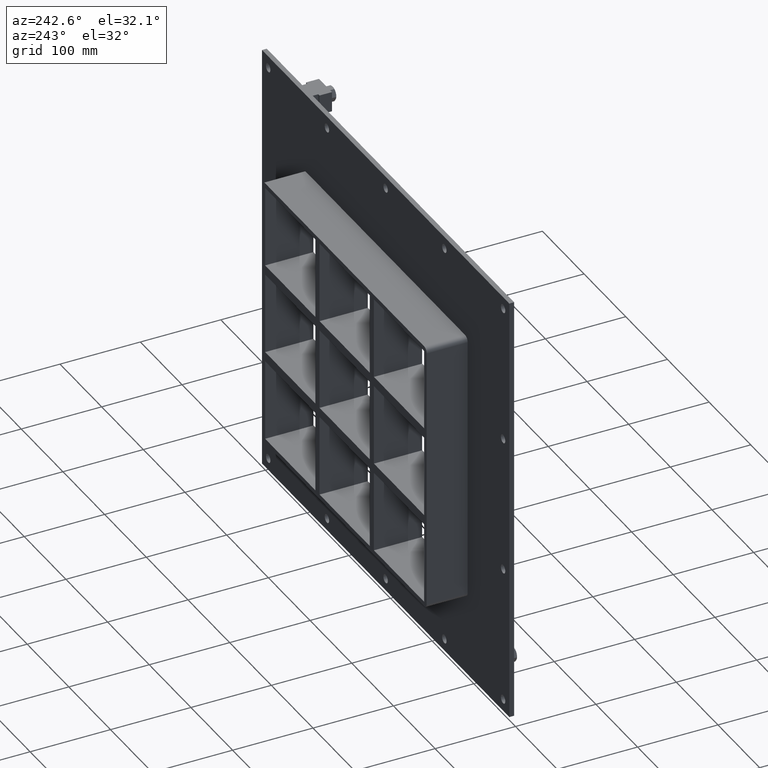
[diagram: clean part render]
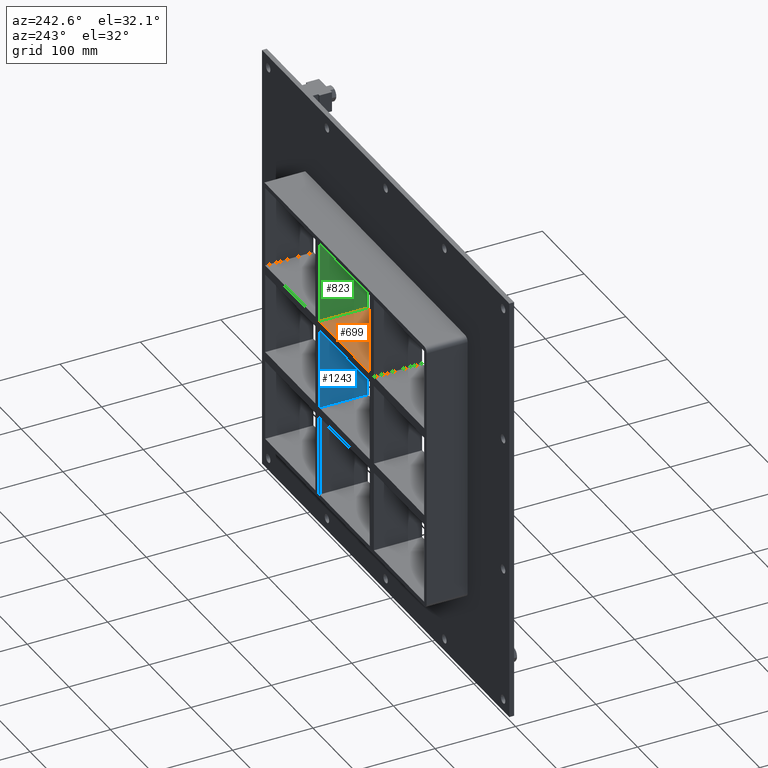
[diagram: same view with three faces highlighted in distinct colors, each labeled with its STEP entity id]
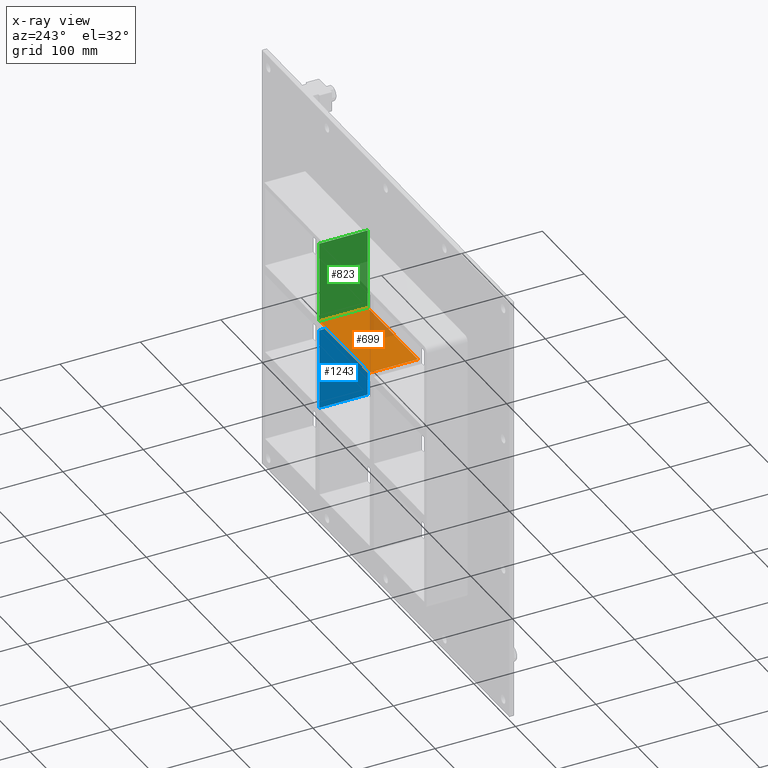
[diagram: x-ray of the same camera — body ghosted, the three highlighted faces saturated]
A machine part, auxiliary view with three faces highlighted in distinct colors.
The next image is the same camera in x-ray (body ghosted, the three faces saturated) — at least one of them is partly hidden behind the body in this view.
Their STEP definitions:

[orange] entity #699 — the highlighted planar face has unit normal (0, 0, 1).
#660=CARTESIAN_POINT('',(-190.74999999999747,-3.0,62.500000000000462));
#661=DIRECTION('',(0.0,0.0,1.0));
#662=DIRECTION('',(1.0,0.0,0.0));
#663=AXIS2_PLACEMENT_3D('',#660,#661,#662);
#664=PLANE('',#663);
#665=CARTESIAN_POINT('',(60.250000000000874,57.0,62.500000000000462));
#666=VERTEX_POINT('',#665);
#667=CARTESIAN_POINT('',(60.250000000000874,-3.0,62.500000000000462));
#668=VERTEX_POINT('',#667);
#669=CARTESIAN_POINT('',(60.250000000000895,57.0,62.500000000000462));
#670=DIRECTION('',(0.0,-1.0,0.0));
#671=VECTOR('',#670,60.0);
#672=LINE('',#669,#671);
#673=EDGE_CURVE('',#666,#668,#672,.T.);
#674=ORIENTED_EDGE('',*,*,#673,.F.);
#675=CARTESIAN_POINT('',(-60.249999999996362,57.0,62.500000000000462));
#676=VERTEX_POINT('',#675);
#677=CARTESIAN_POINT('',(-60.249999999996362,57.0,62.500000000000462));
#678=DIRECTION('',(1.0,0.0,0.0));
#679=VECTOR('',#678,120.49999999999724);
#680=LINE('',#677,#679);
#681=EDGE_CURVE('',#676,#666,#680,.T.);
#682=ORIENTED_EDGE('',*,*,#681,.F.);
#683=CARTESIAN_POINT('',(-60.249999999996362,-3.0,62.500000000000462));
#684=VERTEX_POINT('',#683);
#685=CARTESIAN_POINT('',(-60.249999999996362,-3.0,62.500000000000462));
#686=DIRECTION('',(0.0,1.0,0.0));
#687=VECTOR('',#686,60.0);
#688=LINE('',#685,#687);
#689=EDGE_CURVE('',#684,#676,#688,.T.);
#690=ORIENTED_EDGE('',*,*,#689,.F.);
#691=CARTESIAN_POINT('',(-60.249999999996362,-3.0,62.500000000000462));
#692=DIRECTION('',(1.0,0.0,0.0));
#693=VECTOR('',#692,120.49999999999724);
#694=LINE('',#691,#693);
#695=EDGE_CURVE('',#684,#668,#694,.T.);
#696=ORIENTED_EDGE('',*,*,#695,.T.);
#697=EDGE_LOOP('',(#674,#682,#690,#696));
#698=FACE_OUTER_BOUND('',#697,.T.);
#699=ADVANCED_FACE('',(#698),#664,.T.);

[blue] entity #1243 — the highlighted planar face has unit normal (-1, 0, 0).
#545=CARTESIAN_POINT('',(60.250000000000895,-3.0,50.499999999988965));
#546=VERTEX_POINT('',#545);
#547=CARTESIAN_POINT('',(60.250000000000895,57.0,50.499999999988965));
#548=VERTEX_POINT('',#547);
#549=CARTESIAN_POINT('',(60.250000000000881,-3.0,50.499999999988958));
#550=DIRECTION('',(0.0,1.0,0.0));
#551=VECTOR('',#550,60.0);
#552=LINE('',#549,#551);
#553=EDGE_CURVE('',#546,#548,#552,.T.);
#1090=CARTESIAN_POINT('',(60.250000000000902,57.0,-50.499999999999545));
#1091=VERTEX_POINT('',#1090);
#1098=CARTESIAN_POINT('',(60.250000000000895,57.0,-50.499999999999545));
#1099=DIRECTION('',(0.0,0.0,1.0));
#1100=VECTOR('',#1099,100.99999999998849);
#1101=LINE('',#1098,#1100);
#1102=EDGE_CURVE('',#1091,#548,#1101,.T.);
#1220=CARTESIAN_POINT('',(60.250000000000909,-3.0,-163.50000000000006));
#1221=DIRECTION('',(-1.0,0.0,0.0));
#1222=DIRECTION('',(0.0,0.0,1.0));
#1223=AXIS2_PLACEMENT_3D('',#1220,#1221,#1222);
#1224=PLANE('',#1223);
#1225=ORIENTED_EDGE('',*,*,#553,.T.);
#1226=ORIENTED_EDGE('',*,*,#1102,.F.);
#1227=CARTESIAN_POINT('',(60.250000000000902,-3.0,-50.499999999999545));
#1228=VERTEX_POINT('',#1227);
#1229=CARTESIAN_POINT('',(60.250000000000902,-3.0,-50.499999999999545));
#1230=DIRECTION('',(0.0,1.0,0.0));
#1231=VECTOR('',#1230,60.0);
#1232=LINE('',#1229,#1231);
#1233=EDGE_CURVE('',#1228,#1091,#1232,.T.);
#1234=ORIENTED_EDGE('',*,*,#1233,.F.);
#1235=CARTESIAN_POINT('',(60.250000000000895,-3.0,-50.499999999999545));
#1236=DIRECTION('',(0.0,0.0,1.0));
#1237=VECTOR('',#1236,100.99999999998849);
#1238=LINE('',#1235,#1237);
#1239=EDGE_CURVE('',#1228,#546,#1238,.T.);
#1240=ORIENTED_EDGE('',*,*,#1239,.T.);
#1241=EDGE_LOOP('',(#1225,#1226,#1234,#1240));
#1242=FACE_OUTER_BOUND('',#1241,.T.);
#1243=ADVANCED_FACE('',(#1242),#1224,.T.);

[green] entity #823 — the highlighted planar face has unit normal (-1, 0, 0).
#665=CARTESIAN_POINT('',(60.250000000000874,57.0,62.500000000000462));
#666=VERTEX_POINT('',#665);
#667=CARTESIAN_POINT('',(60.250000000000874,-3.0,62.500000000000462));
#668=VERTEX_POINT('',#667);
#669=CARTESIAN_POINT('',(60.250000000000895,57.0,62.500000000000462));
#670=DIRECTION('',(0.0,-1.0,0.0));
#671=VECTOR('',#670,60.0);
#672=LINE('',#669,#671);
#673=EDGE_CURVE('',#666,#668,#672,.T.);
#793=CARTESIAN_POINT('',(60.250000000000909,-3.0,-163.50000000000006));
#794=DIRECTION('',(-1.0,0.0,0.0));
#795=DIRECTION('',(0.0,0.0,1.0));
#796=AXIS2_PLACEMENT_3D('',#793,#794,#795);
#797=PLANE('',#796);
#798=ORIENTED_EDGE('',*,*,#673,.T.);
#799=CARTESIAN_POINT('',(60.250000000000874,-3.0,163.49999999999997));
#800=VERTEX_POINT('',#799);
#801=CARTESIAN_POINT('',(60.250000000000888,-3.0,62.500000000000455));
#802=DIRECTION('',(0.0,0.0,1.0));
#803=VECTOR('',#802,100.99999999999949);
#804=LINE('',#801,#803);
#805=EDGE_CURVE('',#668,#800,#804,.T.);
#806=ORIENTED_EDGE('',*,*,#805,.T.);
#807=CARTESIAN_POINT('',(60.250000000000874,57.0,163.49999999999997));
#808=VERTEX_POINT('',#807);
#809=CARTESIAN_POINT('',(60.250000000000874,57.000000000000007,163.5));
#810=DIRECTION('',(0.0,-1.0,0.0));
#811=VECTOR('',#810,60.000000000000007);
#812=LINE('',#809,#811);
#813=EDGE_CURVE('',#808,#800,#812,.T.);
#814=ORIENTED_EDGE('',*,*,#813,.F.);
#815=CARTESIAN_POINT('',(60.250000000000888,57.0,62.500000000000455));
#816=DIRECTION('',(0.0,0.0,1.0));
#817=VECTOR('',#816,100.99999999999949);
#818=LINE('',#815,#817);
#819=EDGE_CURVE('',#666,#808,#818,.T.);
#820=ORIENTED_EDGE('',*,*,#819,.F.);
#821=EDGE_LOOP('',(#798,#806,#814,#820));
#822=FACE_OUTER_BOUND('',#821,.T.);
#823=ADVANCED_FACE('',(#822),#797,.T.);